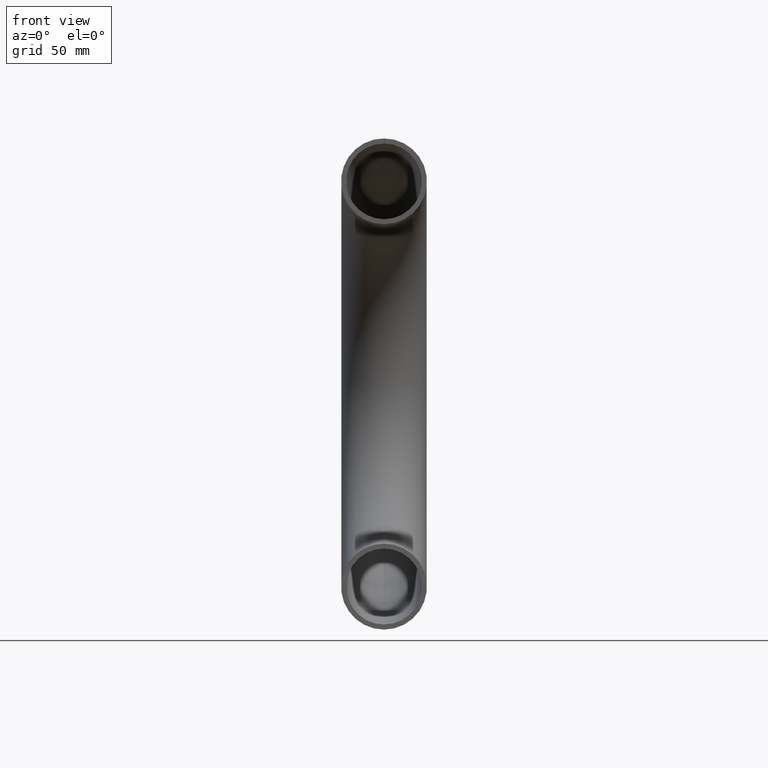
[diagram: clean part render]
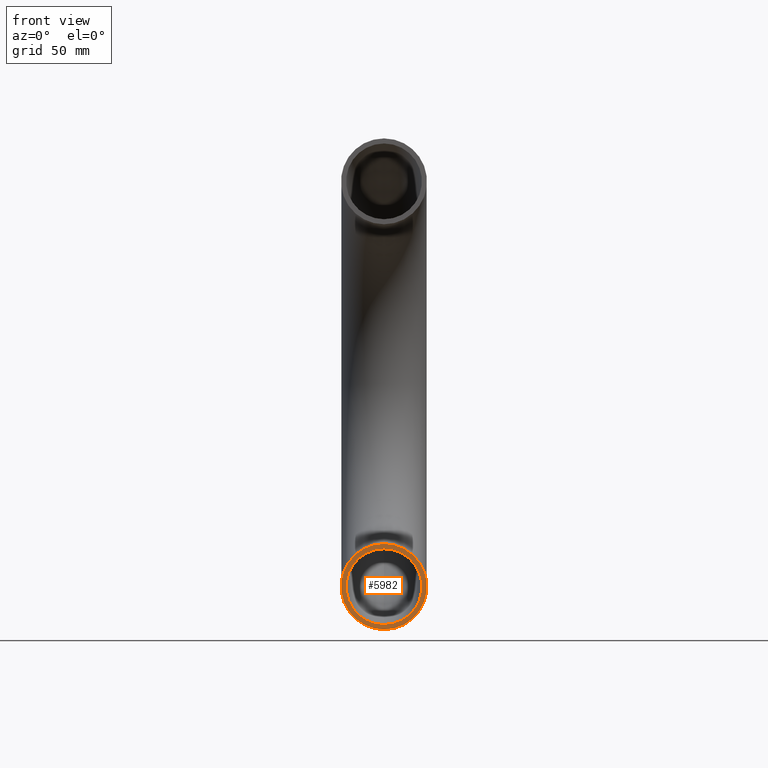
[diagram: same view with one face highlighted and labeled with its STEP entity id]
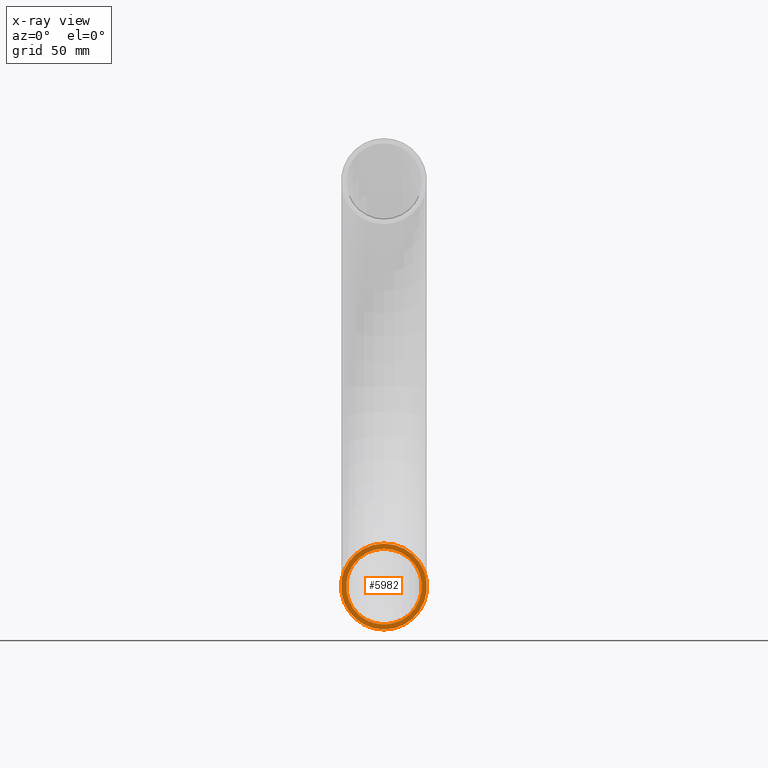
[diagram: x-ray of the same camera — body ghosted, the highlighted face saturated]
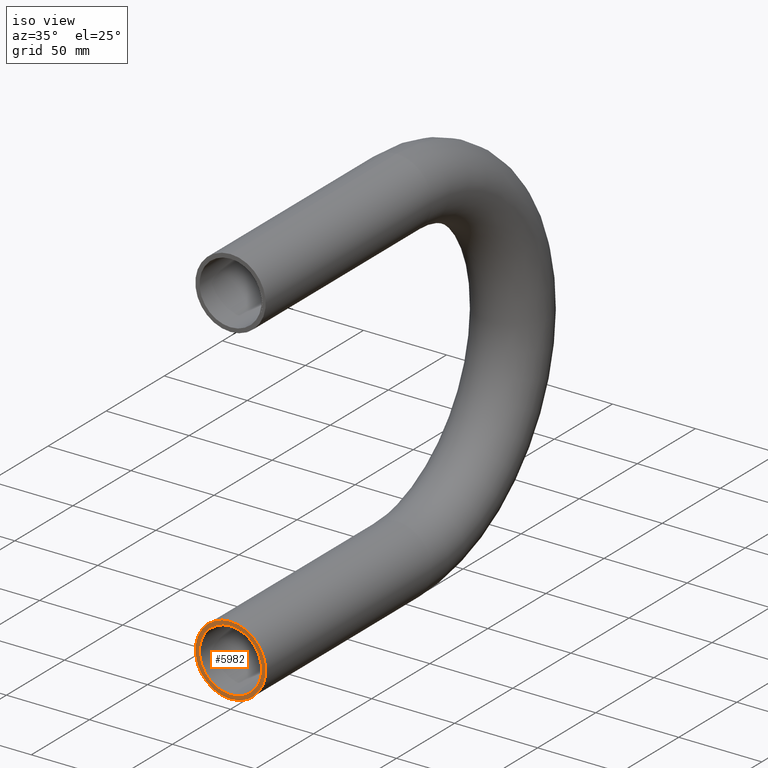
[diagram: same view with one face highlighted and labeled with its STEP entity id]
A machine part, front view. The second image highlights one B-rep face of the part: STEP entity #5982.
The next image is the same camera in x-ray: the body ghosted, the highlighted face saturated — about 0% of this face is hidden behind the body in this view.
A second angle (iso view) of the same face is appended — the face is thin or edge-on in the first view.
In plain terms, the highlighted planar face has unit normal (0, -1, -0).
Its self-contained STEP definition (entity closure, byte-faithful):
#947 = DIRECTION ( 'NONE',  ( 0.000000000000000000, 1.224646799147353700E-16, -1.000000000000000000 ) ) ;
#1140 = AXIS2_PLACEMENT_3D ( 'NONE', #7378, #7082, #947 ) ;
#1488 = EDGE_CURVE ( 'NONE', #8697, #8697, #4927, .T. ) ;
#1604 = VERTEX_POINT ( 'NONE', #8026 ) ;
#1746 = CARTESIAN_POINT ( 'NONE',  ( 0.000000000000000000, 0.000000000000000000, -200.0000000000000000 ) ) ;
#2218 = DIRECTION ( 'NONE',  ( 0.000000000000000000, 1.224646799147353454E-16, -1.000000000000000000 ) ) ;
#3937 = EDGE_LOOP ( 'NONE', ( #11539 ) ) ;
#4023 = CARTESIAN_POINT ( 'NONE',  ( 0.000000000000000000, 2.290089514405550899E-15, -218.7000000000000171 ) ) ;
#4644 = PLANE ( 'NONE',  #7975 ) ;
#4927 = CIRCLE ( 'NONE', #1140, 18.69999999999999574 ) ;
#5427 = DIRECTION ( 'NONE',  ( 0.000000000000000000, 1.224646799147353207E-16, -1.000000000000000000 ) ) ;
#5742 = AXIS2_PLACEMENT_3D ( 'NONE', #11609, #8017, #2218 ) ;
#5982 = ADVANCED_FACE ( 'NONE', ( #6531, #7129 ), #4644, .T. ) ;
#6531 = FACE_BOUND ( 'NONE', #3937, .T. ) ;
#7082 = DIRECTION ( 'NONE',  ( 0.000000000000000000, -1.000000000000000000, -1.224646799147353207E-16 ) ) ;
#7129 = FACE_OUTER_BOUND ( 'NONE', #7510, .T. ) ;
#7378 = CARTESIAN_POINT ( 'NONE',  ( 0.000000000000000000, 0.000000000000000000, -200.0000000000000000 ) ) ;
#7510 = EDGE_LOOP ( 'NONE', ( #8546 ) ) ;
#7975 = AXIS2_PLACEMENT_3D ( 'NONE', #1746, #8369, #5427 ) ;
#8017 = DIRECTION ( 'NONE',  ( 0.000000000000000000, -1.000000000000000000, -1.224646799147353207E-16 ) ) ;
#8026 = CARTESIAN_POINT ( 'NONE',  ( 0.000000000000000000, 2.596251214192388770E-15, -221.2000000000000171 ) ) ;
#8369 = DIRECTION ( 'NONE',  ( 0.000000000000000000, -1.000000000000000000, -1.224646799147353207E-16 ) ) ;
#8546 = ORIENTED_EDGE ( 'NONE', *, *, #9375, .T. ) ;
#8697 = VERTEX_POINT ( 'NONE', #4023 ) ;
#9375 = EDGE_CURVE ( 'NONE', #1604, #1604, #9766, .T. ) ;
#9766 = CIRCLE ( 'NONE', #5742, 21.19999999999999574 ) ;
#11539 = ORIENTED_EDGE ( 'NONE', *, *, #1488, .F. ) ;
#11609 = CARTESIAN_POINT ( 'NONE',  ( 0.000000000000000000, 0.000000000000000000, -200.0000000000000000 ) ) ;